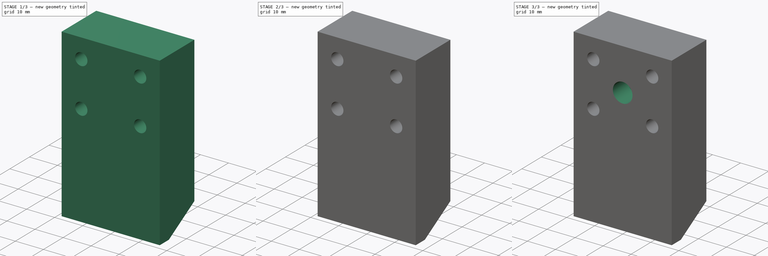
[diagram: build sequence overview — one tinted view per stage of 3, left to right]
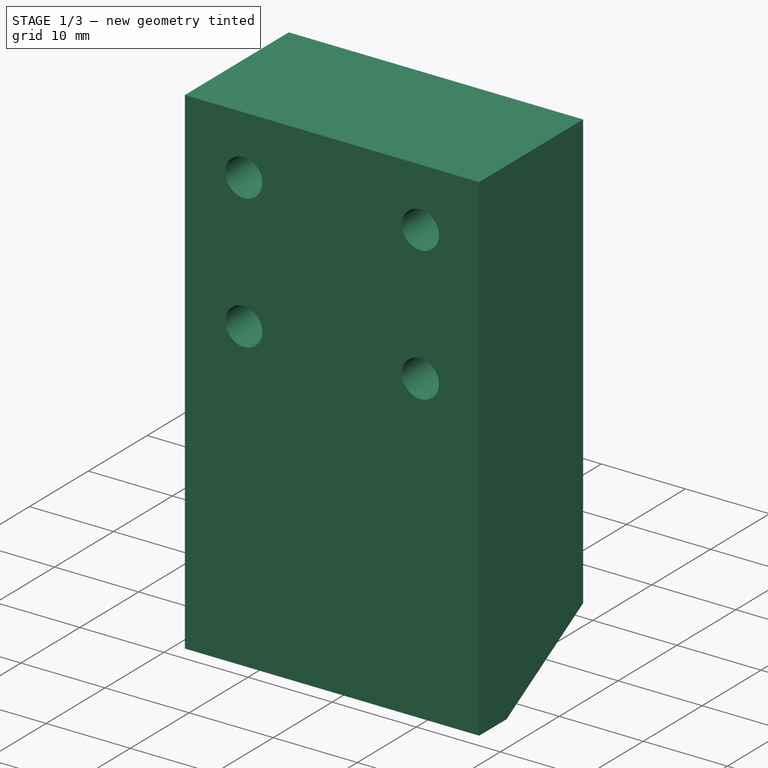
[diagram: stage 1 of 3 — iso view after this stage's code; geometry added in this stage tinted green]
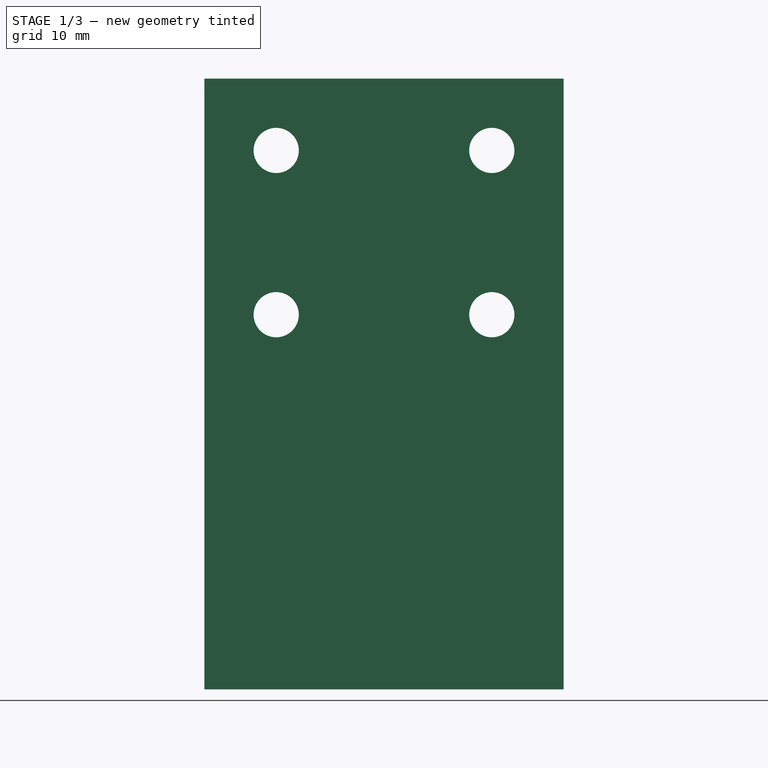
[diagram: stage 1 of 3 — front view after this stage's code; geometry added in this stage tinted green]
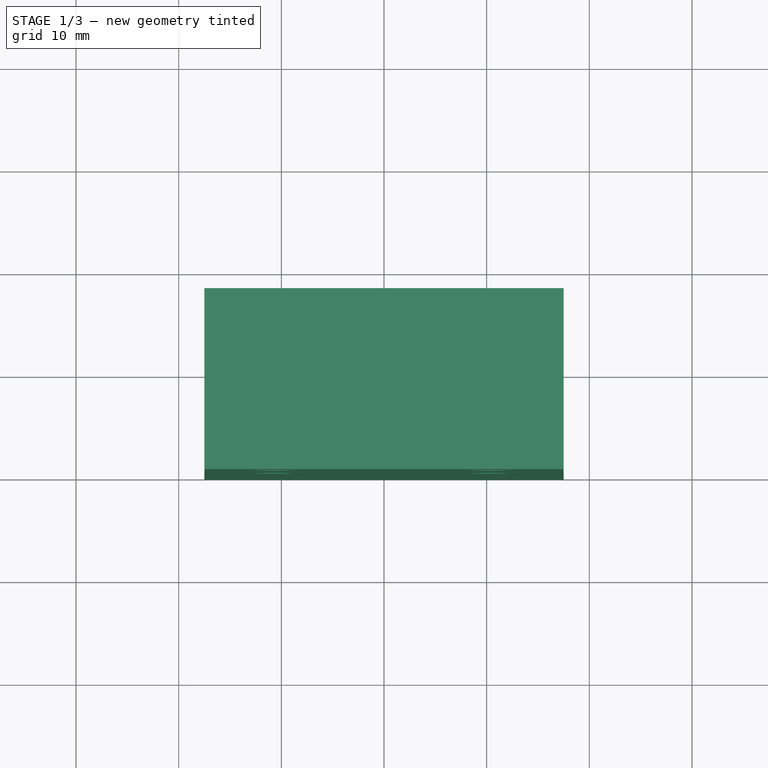
[diagram: stage 1 of 3 — top view after this stage's code; geometry added in this stage tinted green]
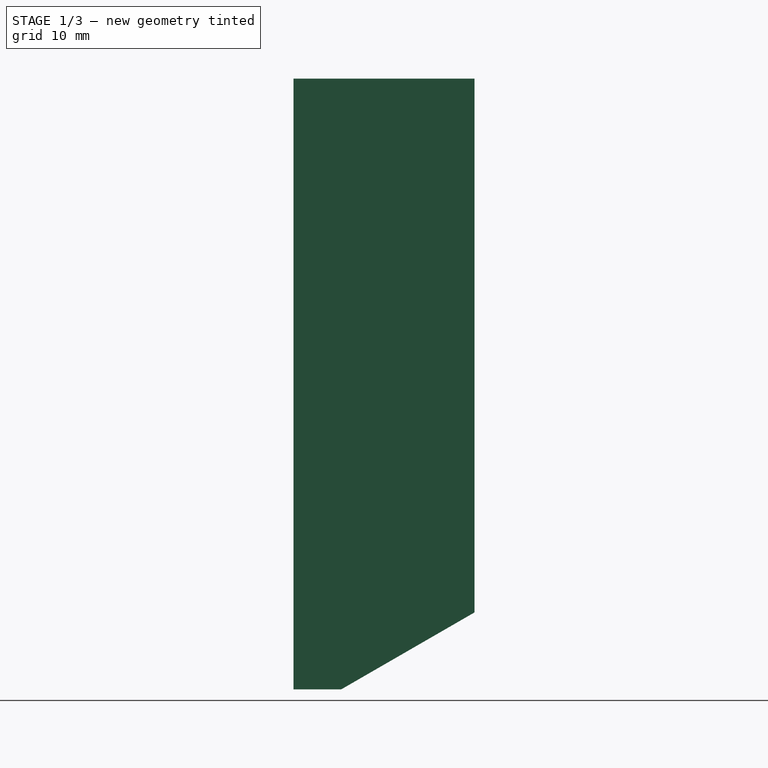
[diagram: stage 1 of 3 — right view after this stage's code; geometry added in this stage tinted green]
FCSTD DOCUMENT  (FreeCAD 0.18.4R)
Label: part12
License: All rights reserved
LicenseURL: http://en.wikipedia.org/wiki/All_rights_reserved
objects: Sketcher::SketchObject×5, PartDesign::Hole×3, PartDesign::Pocket×2, PartDesign::Pad×1, PartDesign::Body×1, App::Part×1
note: 18 computed .brp shape members not serialized (recipe doc carries the construction recipe); baked Part::Feature solids carry a one-line shape summary decoded from their .brp

FEATURE [Sketcher::SketchObject] Sketch
  MapMode = 5
  Placement = pos=(0,0,0) rot=(0.57735,0.57735,0.57735;2.0944rad)
  Support = -> [YZ_Plane001]
  sketch-geometry (6):
    g0: LineSegment StartX=30 StartY=20 StartZ=0 EndX=30 EndY=79.5 EndZ=0
    g1: LineSegment StartX=30 StartY=79.5 StartZ=0 EndX=47.6314 EndY=79.5 EndZ=0
    g2: LineSegment StartX=47.6314 StartY=79.5 StartZ=0 EndX=47.6314 EndY=27.5 EndZ=0
    g3: LineSegment StartX=47.6314 StartY=27.5 StartZ=0 EndX=34.641 EndY=20 EndZ=0
    g4: LineSegment StartX=34.641 StartY=20 StartZ=0 EndX=30 EndY=20 EndZ=0
    g5: GeomPoint X=0 Y=12 Z=0
  constraints (17):
    c: Vertical(g0)
    c: Coincident(g1,g0)
    c: Horizontal(g1)
    c: Coincident(g2,g1)
    c: Vertical(g2)
    c: Coincident(g3,g2)
    c: Coincident(g4,g3)
    c: Coincident(g4,g0)
    c: Horizontal(g4)
    c: Distance(g3) = 15
    c: DistanceX(g-1,g0) = 30
    c: PointOnObject(g5,g-2)
    c: DistanceY(g-1,g5) = 12
    c: DistanceY(g5,g0) = 67.5
    c: Angle(g-1,g3) = 0.523599
    c: PointOnObject(g-1,g3)
    c: Distance(g3,g-1) = 40
FEATURE [PartDesign::Pad] Pad
  Length = 35
  Length2 = 100
  Midplane = true
  Placement = pos=(0,0,0) rot=(0.57735,0.57735,0.57735;2.0944rad)
  Profile = -> Sketch
  Type = 0
FEATURE [Sketcher::SketchObject] Sketch001
  MapMode = 5
  Placement = pos=(2.1e-14,47.6314,-1.05e-14) rot=(0.57735,0.57735,0.57735;4.18879rad)
  Support = -> [Pad]
  sketch-geometry (4):
    g0: Circle CenterX=72.5 CenterY=10.5 CenterZ=0 NormalX=0 NormalY=0 NormalZ=1 AngleXU=0 Radius=2.76633
    g1: Circle CenterX=56.5 CenterY=10.5 CenterZ=0 NormalX=0 NormalY=0 NormalZ=1 AngleXU=0 Radius=2.05802
    g2: Circle CenterX=56.5 CenterY=-10.5 CenterZ=0 NormalX=0 NormalY=0 NormalZ=1 AngleXU=0 Radius=2.15293
    g3: Circle CenterX=72.5 CenterY=-10.5 CenterZ=0 NormalX=0 NormalY=0 NormalZ=1 AngleXU=0 Radius=2.82841
  constraints (6):
    c: Symmetric(g0,g3,g-1)
    c: Symmetric(g1,g2,g-1)
    c: DistanceY(g3,g0) = 21
    c: DistanceY(g2,g1) = 21
    c: DistanceX(g1,g0) = 16
    c: DistanceX(g-1,g0) = 72.5
FEATURE [PartDesign::Hole] Hole
  BaseFeature = -> Pad
  Depth = 25
  DepthType = 1
  Diameter = 4.4
  DrillPoint = 0
  DrillPointAngle = 118
  HoleCutCountersinkAngle = 90
  HoleCutDepth = 0
  HoleCutDiameter = 4
  HoleCutType = 0
  ModelActualThread = false
  Placement = pos=(0,0,0) rot=(0.57735,0.57735,0.57735;2.0944rad)
  Profile = -> Sketch001
  Tapered = false
  TaperedAngle = 90
  ThreadAngle = 60
  ThreadClass = 0
  ThreadCutOffInner = 0.0757772
  ThreadCutOffOuter = 0.151554
  ThreadDirection = 0
  ThreadFit = 0
  ThreadPitch = 0.7
  ThreadSize = 5
  ThreadType = 1
  Threaded = false
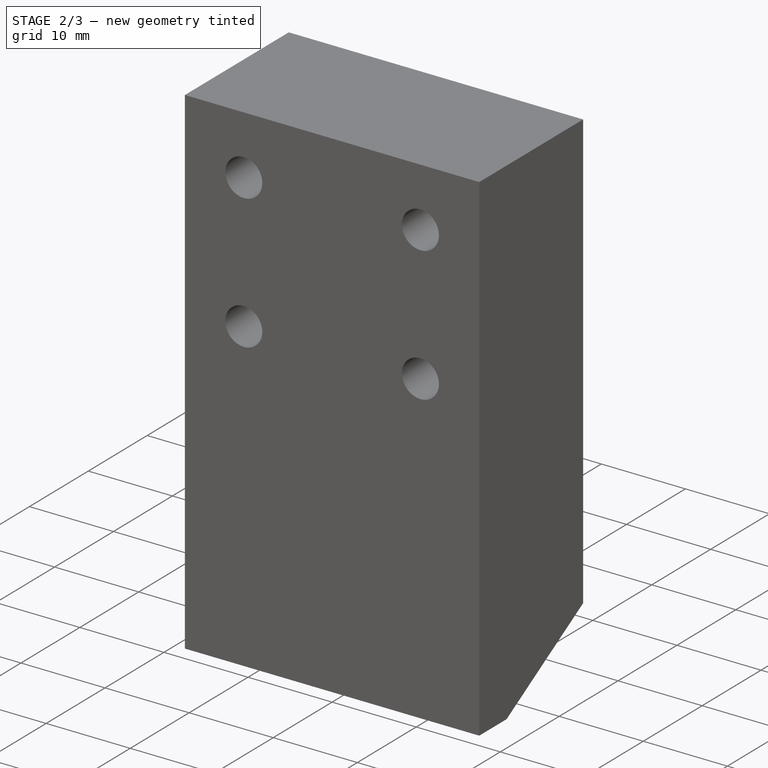
[diagram: stage 2 of 3 — iso view after this stage's code; geometry added in this stage tinted green]
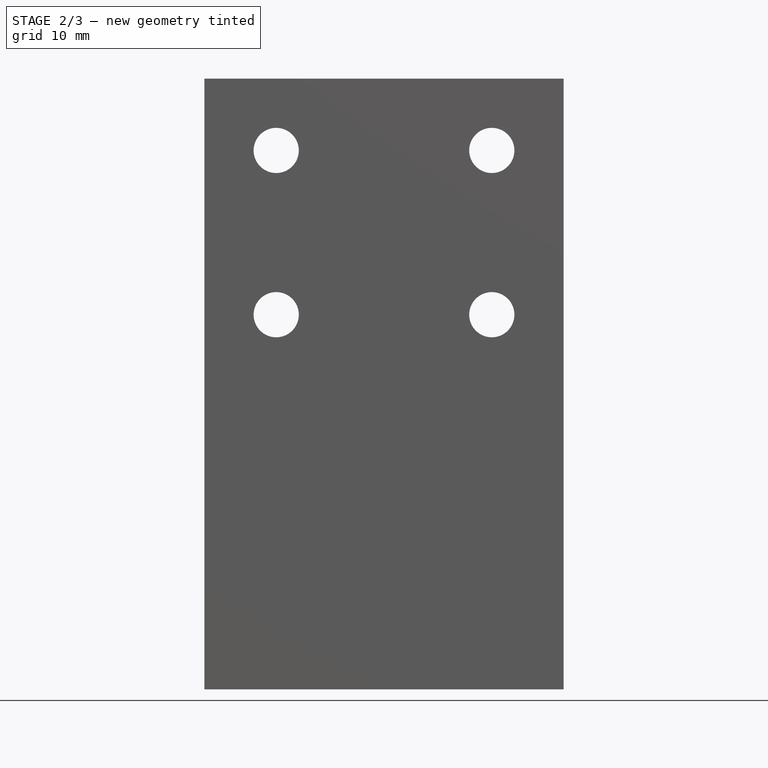
[diagram: stage 2 of 3 — front view after this stage's code; geometry added in this stage tinted green]
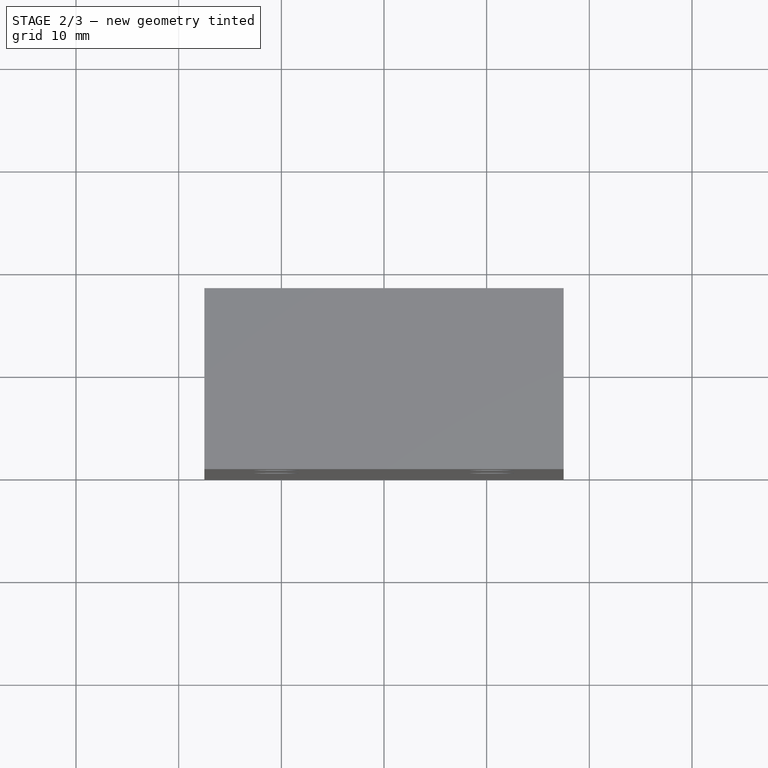
[diagram: stage 2 of 3 — top view after this stage's code; geometry added in this stage tinted green]
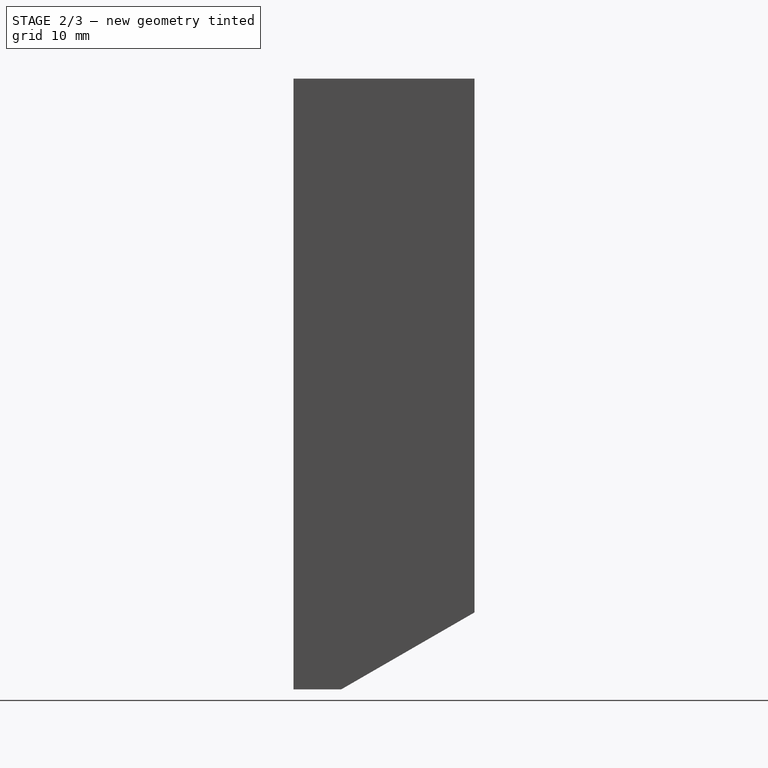
[diagram: stage 2 of 3 — right view after this stage's code; geometry added in this stage tinted green]
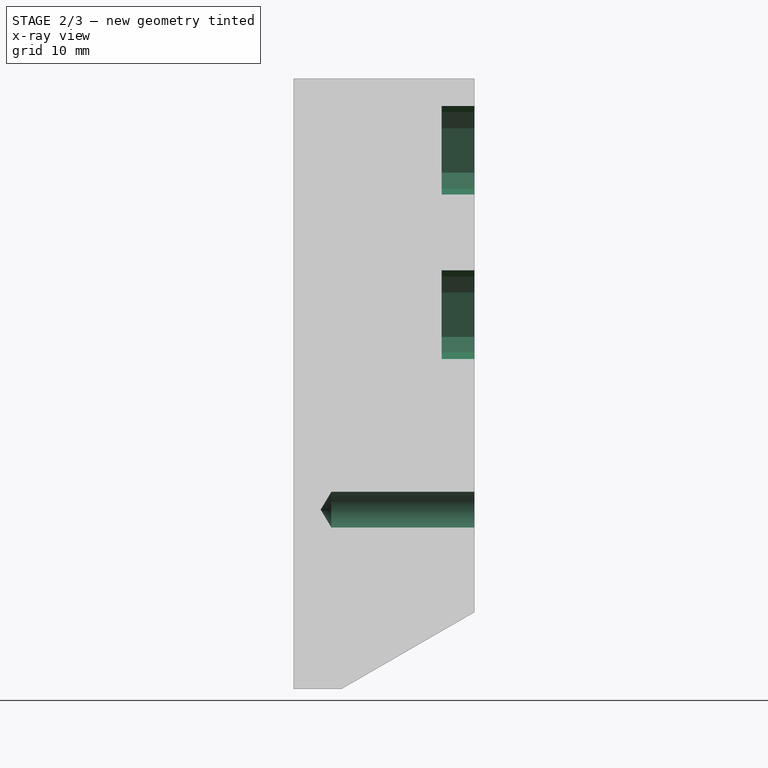
[diagram: stage 2 of 3 — x-ray composite at the right view; earlier geometry ghosted, this stage's added geometry solid]
FEATURE [Sketcher::SketchObject] Sketch002
  MapMode = 5
  Placement = pos=(2.1e-14,47.6314,-1.05e-14) rot=(0.57735,0.57735,0.57735;4.18879rad)
  Support = -> [Hole]
  sketch-geometry (32):
    g0: GeomPoint X=56.5 Y=10.5 Z=0
    g1: GeomPoint X=56.5 Y=-10.5 Z=0
    g2: GeomPoint X=72.5 Y=-10.5 Z=0
    g3: GeomPoint X=72.5 Y=10.5 Z=0
    g4: LineSegment StartX=60.8301 StartY=10.5 StartZ=0 EndX=58.6651 EndY=14.25 EndZ=0
    g5: LineSegment StartX=58.6651 StartY=14.25 StartZ=0 EndX=54.3349 EndY=14.25 EndZ=0
    g6: LineSegment StartX=54.3349 StartY=14.25 StartZ=0 EndX=52.1699 EndY=10.5 EndZ=0
    g7: LineSegment StartX=52.1699 StartY=10.5 StartZ=0 EndX=54.3349 EndY=6.75 EndZ=0
    g8: LineSegment StartX=54.3349 StartY=6.75 StartZ=0 EndX=58.6651 EndY=6.75 EndZ=0
    g9: LineSegment StartX=58.6651 StartY=6.75 StartZ=0 EndX=60.8301 EndY=10.5 EndZ=0
    g10: Circle [constr] CenterX=56.5 CenterY=10.5 CenterZ=0 NormalX=0 NormalY=0 NormalZ=1 AngleXU=0 Radius=4.33013
    g11: LineSegment StartX=74.6651 StartY=14.25 StartZ=0 EndX=70.3349 EndY=14.25 EndZ=0
    g12: LineSegment StartX=70.3349 StartY=14.25 StartZ=0 EndX=68.1699 EndY=10.5 EndZ=0
    g13: LineSegment StartX=68.1699 StartY=10.5 StartZ=0 EndX=70.3349 EndY=6.75 EndZ=0
    g14: LineSegment StartX=70.3349 StartY=6.75 StartZ=0 EndX=74.6651 EndY=6.75 EndZ=0
    g15: LineSegment StartX=74.6651 StartY=6.75 StartZ=0 EndX=76.8301 EndY=10.5 EndZ=0
    g16: LineSegment StartX=76.8301 StartY=10.5 StartZ=0 EndX=74.6651 EndY=14.25 EndZ=0
    g17: Circle [constr] CenterX=72.5 CenterY=10.5 CenterZ=0 NormalX=0 NormalY=0 NormalZ=1 AngleXU=0 Radius=4.33013
    g18: LineSegment StartX=58.6651 StartY=-6.75 StartZ=0 EndX=54.3349 EndY=-6.75 EndZ=0
    g19: LineSegment StartX=54.3349 StartY=-6.75 StartZ=0 EndX=52.1699 EndY=-10.5 EndZ=0
    g20: LineSegment StartX=52.1699 StartY=-10.5 StartZ=0 EndX=54.3349 EndY=-14.25 EndZ=0
    g21: LineSegment StartX=54.3349 StartY=-14.25 StartZ=0 EndX=58.6651 EndY=-14.25 EndZ=0
    g22: LineSegment StartX=58.6651 StartY=-14.25 StartZ=0 EndX=60.8301 EndY=-10.5 EndZ=0
    g23: LineSegment StartX=60.8301 StartY=-10.5 StartZ=0 EndX=58.6651 EndY=-6.75 EndZ=0
    g24: Circle [constr] CenterX=56.5 CenterY=-10.5 CenterZ=0 NormalX=0 NormalY=0 NormalZ=1 AngleXU=0 Radius=4.33013
    g25: LineSegment StartX=74.6651 StartY=-6.75 StartZ=0 EndX=70.3349 EndY=-6.75 EndZ=0
    g26: LineSegment StartX=70.3349 StartY=-6.75 StartZ=0 EndX=68.1699 EndY=-10.5 EndZ=0
    g27: LineSegment StartX=68.1699 StartY=-10.5 StartZ=0 EndX=70.3349 EndY=-14.25 EndZ=0
    g28: LineSegment StartX=70.3349 StartY=-14.25 StartZ=0 EndX=74.6651 EndY=-14.25 EndZ=0
    g29: LineSegment StartX=74.6651 StartY=-14.25 StartZ=0 EndX=76.8301 EndY=-10.5 EndZ=0
    g30: LineSegment StartX=76.8301 StartY=-10.5 StartZ=0 EndX=74.6651 EndY=-6.75 EndZ=0
    g31: Circle [constr] CenterX=72.5 CenterY=-10.5 CenterZ=0 NormalX=0 NormalY=0 NormalZ=1 AngleXU=0 Radius=4.33013
  constraints (70):
    c: Symmetric(g0,g1,g-1)
    c: Symmetric(g3,g2,g-1)
    c: DistanceY(g1,g0) = 21
    c: DistanceY(g2,g3) = 21
    c: DistanceX(g0,g3) = 16
    c: DistanceX(g-1,g3) = 72.5
    c: Coincident(g4,g5)
    c: Coincident(g5,g6)
    c: Coincident(g6,g7)
    c: Coincident(g7,g8)
    c: Coincident(g8,g9)
    c: Coincident(g9,g4)
    c: Equal(g4, g5-g9) x5
    c: PointOnObject(g4,g10)
    c: PointOnObject(g5,g10)
    c: PointOnObject(g6,g10)
    c: PointOnObject(g7,g10)
    c: PointOnObject(g8,g10)
    c: PointOnObject(g9,g10)
    c: Coincident(g10,g0)
    c: Coincident(g11,g12)
    c: Coincident(g12,g13)
    c: Coincident(g13,g14)
    c: Coincident(g14,g15)
    c: Coincident(g15,g16)
    c: Coincident(g16,g11)
    c: Equal(g11, g12-g16) x5
    c: PointOnObject(g11,g17)
    c: PointOnObject(g12,g17)
    c: PointOnObject(g13,g17)
    c: PointOnObject(g14,g17)
    c: PointOnObject(g15,g17)
    c: PointOnObject(g16,g17)
    c: Coincident(g17,g3)
    c: Coincident(g18,g19)
    c: Coincident(g19,g20)
    c: Coincident(g20,g21)
    c: Coincident(g21,g22)
    c: Coincident(g22,g23)
    c: Coincident(g23,g18)
    c: Equal(g18, g19-g23) x5
    c: PointOnObject(g18,g24)
    c: PointOnObject(g19,g24)
    c: PointOnObject(g20,g24)
    c: PointOnObject(g21,g24)
    c: PointOnObject(g22,g24)
    c: PointOnObject(g23,g24)
    c: Coincident(g24,g1)
    c: Coincident(g25,g26)
    c: Coincident(g26,g27)
    c: Coincident(g27,g28)
    c: Coincident(g28,g29)
    c: Coincident(g29,g30)
    c: Coincident(g30,g25)
    c: Equal(g25, g26-g30) x5
    c: PointOnObject(g25,g31)
    c: PointOnObject(g26,g31)
    c: PointOnObject(g27,g31)
    c: PointOnObject(g28,g31)
    c: PointOnObject(g29,g31)
    c: PointOnObject(g30,g31)
    c: Coincident(g31,g2)
    c: Horizontal(g5)
    c: Horizontal(g11)
    c: Horizontal(g18)
    c: Horizontal(g25)
    c: Equal(g10,g17)
    c: Equal(g10,g24)
    c: Equal(g17,g31)
    c: DistanceY(g8,g4) = 7.5
FEATURE [PartDesign::Pocket] Pocket
  BaseFeature = -> Hole
  Length = 3.2
  Length2 = 100
  Placement = pos=(0,0,0) rot=(0.57735,0.57735,0.57735;2.0944rad)
  Profile = -> Sketch002
  Type = 0
FEATURE [Sketcher::SketchObject] Sketch003
  MapMode = 5
  Placement = pos=(2.1e-14,47.6314,-1.05e-14) rot=(0.57735,0.57735,0.57735;4.18879rad)
  Support = -> [Pocket]
  sketch-geometry (1):
    g0: Circle CenterX=37.5 CenterY=0 CenterZ=0 NormalX=0 NormalY=0 NormalZ=1 AngleXU=0 Radius=3.91218
  constraints (2):
    c: PointOnObject(g0,g-1)
    c: DistanceX(g-1,g0) = 37.5
FEATURE [PartDesign::Hole] Hole001
  BaseFeature = -> Pocket
  Depth = 15
  DepthType = 0
  Diameter = 3.5
  DrillPoint = 1
  DrillPointAngle = 118
  HoleCutCountersinkAngle = 90
  HoleCutDepth = 0
  HoleCutDiameter = 0
  HoleCutType = 0
  ModelActualThread = false
  Placement = pos=(0,0,0) rot=(0.57735,0.57735,0.57735;2.0944rad)
  Profile = -> Sketch003
  Tapered = false
  TaperedAngle = 90
  ThreadAngle = 0
  ThreadClass = 0
  ThreadCutOffInner = 0
  ThreadCutOffOuter = 0
  ThreadDirection = 0
  ThreadFit = 0
  ThreadPitch = 0
  ThreadSize = 0
  ThreadType = 0
  Threaded = false
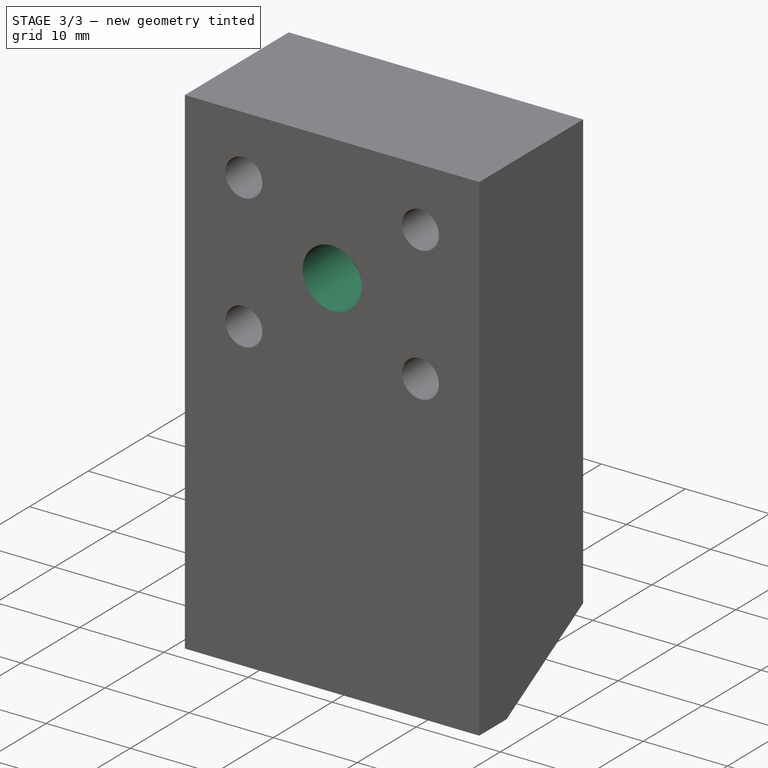
[diagram: stage 3 of 3 — iso view after this stage's code; geometry added in this stage tinted green]
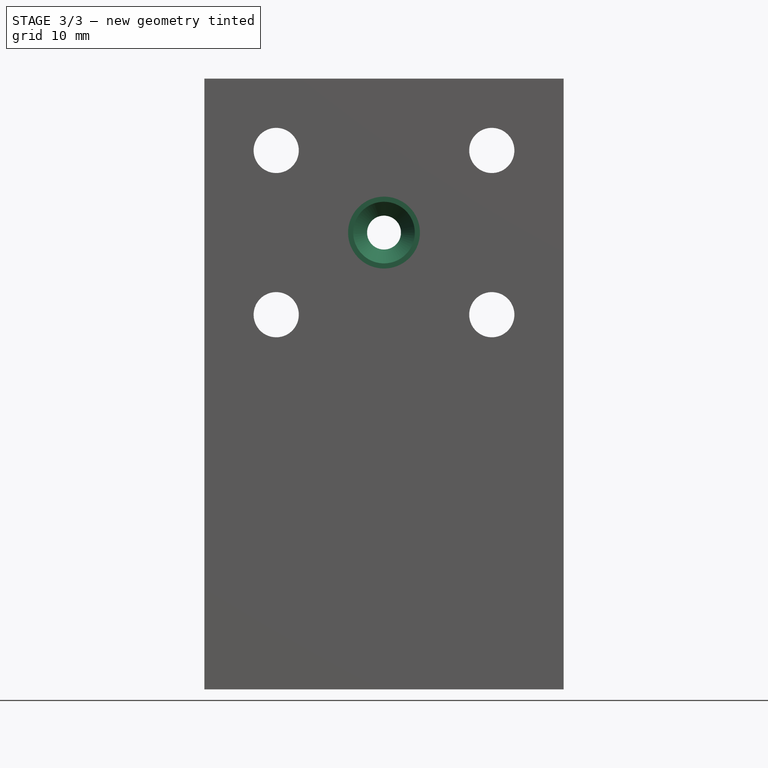
[diagram: stage 3 of 3 — front view after this stage's code; geometry added in this stage tinted green]
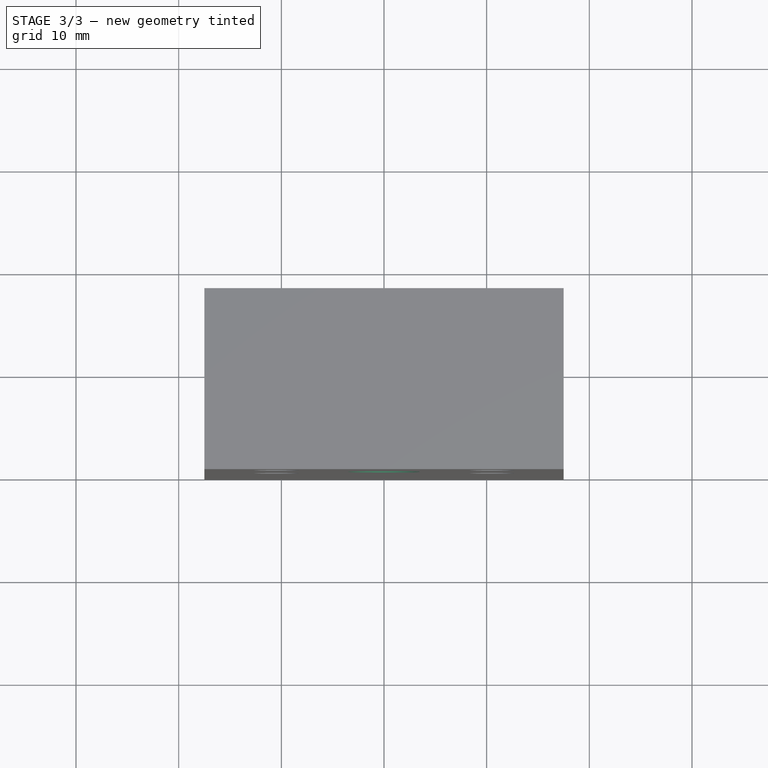
[diagram: stage 3 of 3 — top view after this stage's code; geometry added in this stage tinted green]
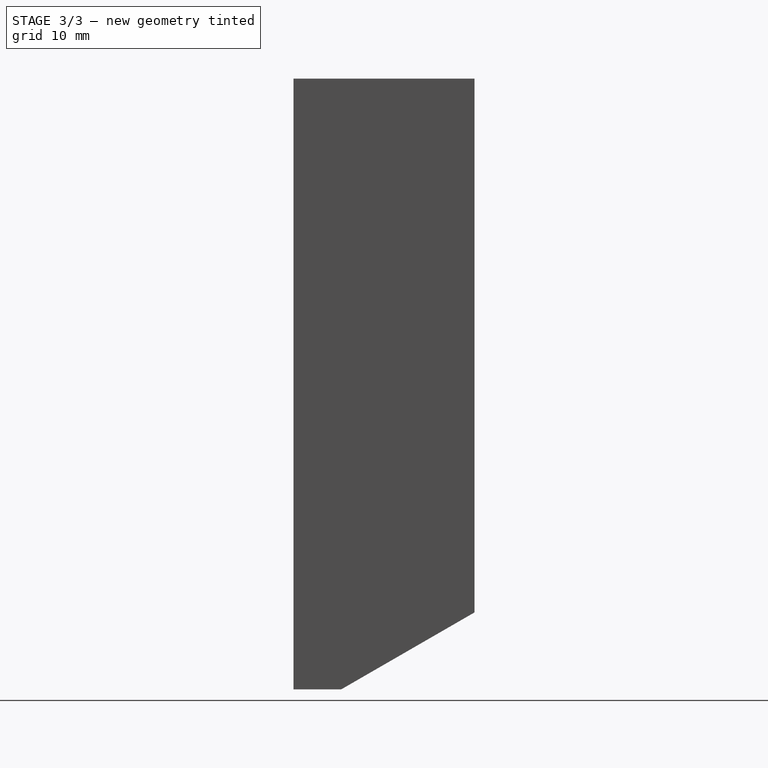
[diagram: stage 3 of 3 — right view after this stage's code; geometry added in this stage tinted green]
FEATURE [Sketcher::SketchObject] Sketch004
  AttachmentOffset = pos=(0,0,-10) rot=(0,0,1;0rad)
  MapMode = 5
  Placement = pos=(1.76e-14,37.6314,-9.4e-15) rot=(0.57735,0.57735,0.57735;4.18879rad)
  Support = -> [Hole001]
  sketch-geometry (1):
    g0: Circle CenterX=64.5 CenterY=0 CenterZ=0 NormalX=0 NormalY=0 NormalZ=1 AngleXU=0 Radius=3.5
  constraints (3):
    c: Radius(g0) = 3.5
    c: PointOnObject(g0,g-1)
    c: DistanceX(g-1,g0) = 64.5
FEATURE [PartDesign::Pocket] Pocket001
  BaseFeature = -> Hole001
  Length = 5
  Length2 = 100
  Placement = pos=(0,0,0) rot=(0.57735,0.57735,0.57735;2.0944rad)
  Profile = -> Sketch004
  Type = 1
FEATURE [PartDesign::Hole] Hole002
  BaseFeature = -> Pocket001
  Depth = 25
  DepthType = 1
  Diameter = 3.3
  DrillPoint = 1
  DrillPointAngle = 118
  HoleCutCountersinkAngle = 90
  HoleCutDepth = 0
  HoleCutDiameter = 6
  HoleCutType = 2
  ModelActualThread = false
  Placement = pos=(0,0,0) rot=(0.57735,0.57735,0.57735;2.0944rad)
  Profile = -> Pocket001 [Face14]
  Tapered = false
  TaperedAngle = 90
  ThreadAngle = 0
  ThreadClass = 0
  ThreadCutOffInner = 0
  ThreadCutOffOuter = 0
  ThreadDirection = 0
  ThreadFit = 0
  ThreadPitch = 0
  ThreadSize = 3
  ThreadType = 1
  Threaded = false
FEATURE [PartDesign::Body] Body
  Group = -> [Sketch,Pad,Sketch001,Hole,Sketch002,Pocket,Sketch003,Hole001,Sketch004,Pocket001,Hole002]
  Origin = -> Origin001
  Tip = -> Hole002
FEATURE [App::Part] Part  label="part5"
  Group = -> [Body]
  Origin = -> Origin
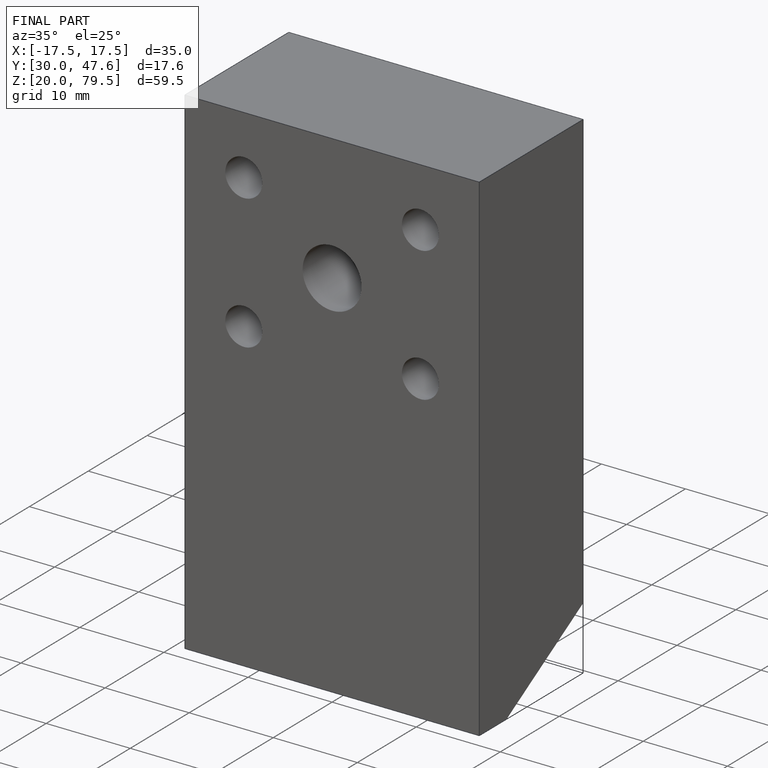
[diagram: finished part — iso view with bounding-box wireframe]
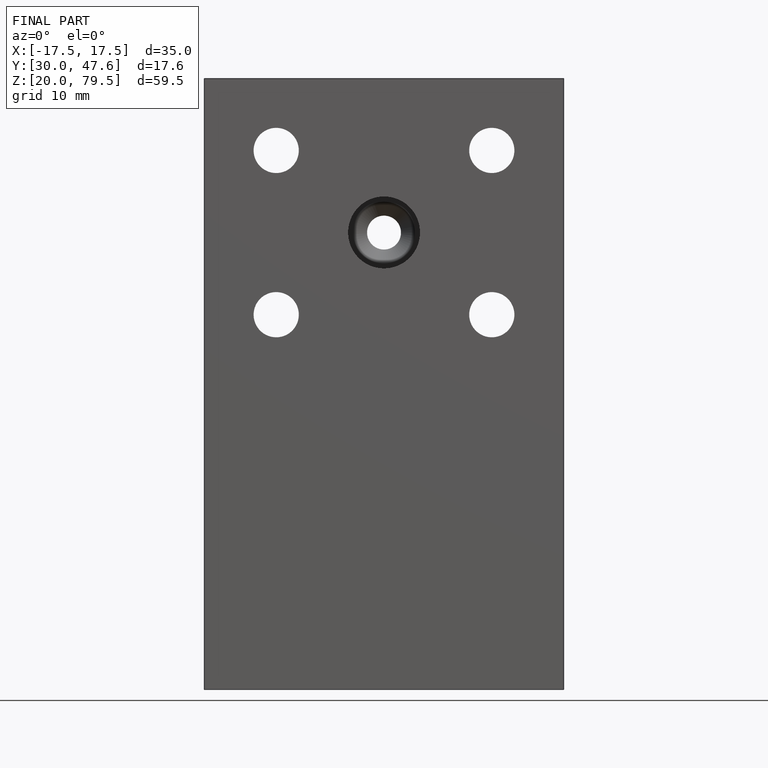
[diagram: finished part — front view with bounding-box wireframe]
